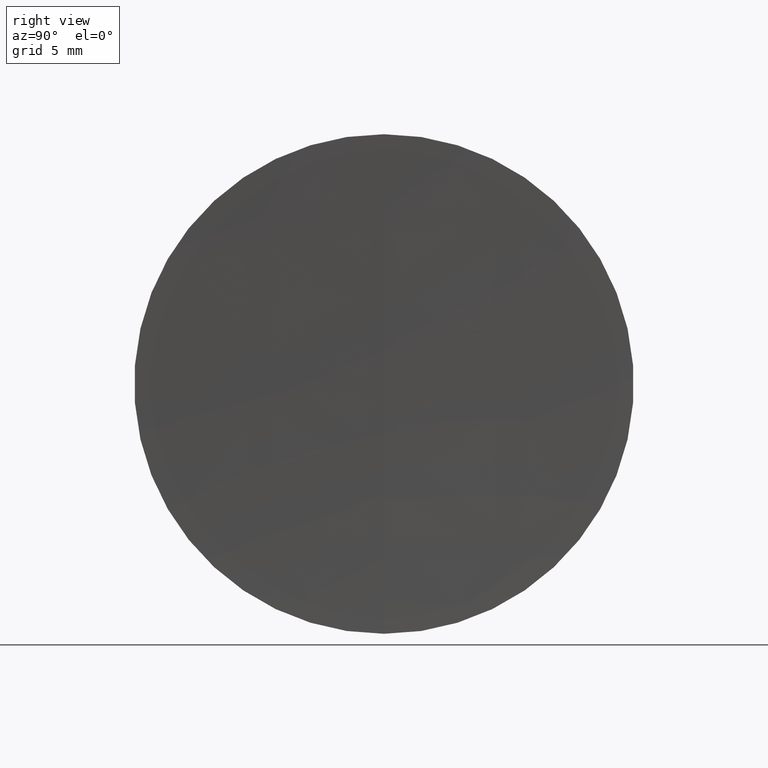
[diagram: clean part render]
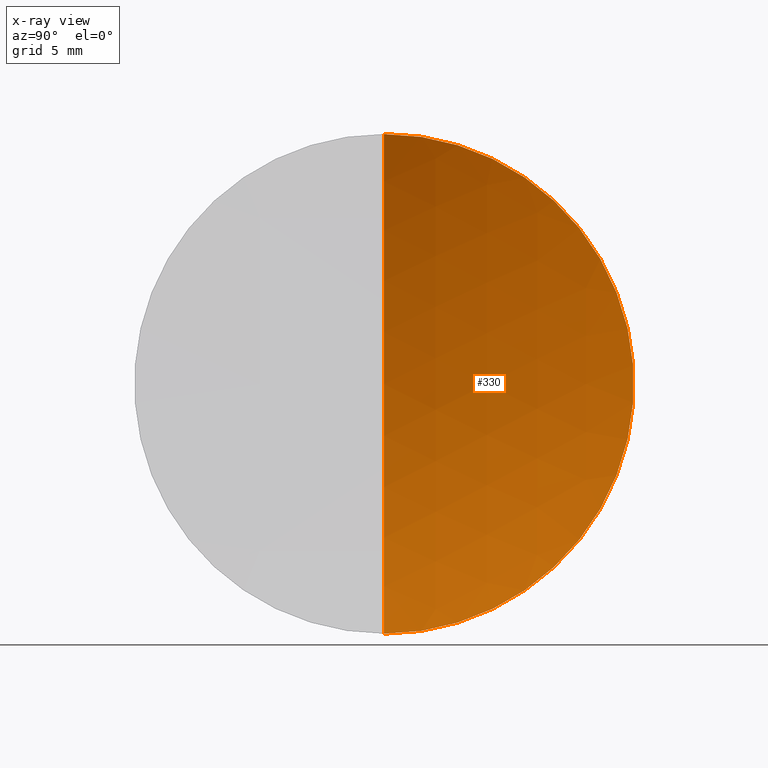
[diagram: x-ray — body ghosted, one internal face saturated and labeled with its STEP entity id]
A machine part, right view, then the same camera in x-ray: the body is ghosted and one INTERNAL B-rep face — a face not visible from any outside direction — is saturated and labeled: STEP entity #330.
In plain terms, the highlighted spherical surface has radius 27.86 mm.
Its self-contained STEP definition (entity closure, byte-faithful):
#33 = AXIS2_PLACEMENT_3D ( 'NONE', #85, #81, #319 ) ;
#35 = DIRECTION ( 'NONE',  ( 0.0000000000000000000, -1.224646799147353200E-016, 1.000000000000000000 ) ) ;
#38 = AXIS2_PLACEMENT_3D ( 'NONE', #346, #172, #314 ) ;
#44 = VERTEX_POINT ( 'NONE', #218 ) ;
#52 = VERTEX_POINT ( 'NONE', #105 ) ;
#67 = DIRECTION ( 'NONE',  ( -0.0000000000000000000, 1.000000000000000000, 1.224646799147353200E-016 ) ) ;
#74 = CIRCLE ( 'NONE', #33, 12.69999999999993000 ) ;
#76 = AXIS2_PLACEMENT_3D ( 'NONE', #333, #67, #35 ) ;
#81 = DIRECTION ( 'NONE',  ( -1.000000000000000000, -0.0000000000000000000, -0.0000000000000000000 ) ) ;
#85 = CARTESIAN_POINT ( 'NONE',  ( 161.5418237581144500, 0.0000000000000000000, 0.0000000000000000000 ) ) ;
#96 = EDGE_CURVE ( 'NONE', #52, #44, #74, .T. ) ;
#97 = ORIENTED_EDGE ( 'NONE', *, *, #335, .F. ) ;
#104 = EDGE_LOOP ( 'NONE', ( #214, #271, #97 ) ) ;
#105 = CARTESIAN_POINT ( 'NONE',  ( 161.5418237581144500, 0.0000000000000000000, 12.69999999999993500 ) ) ;
#116 = DIRECTION ( 'NONE',  ( 0.0000000000000000000, 0.0000000000000000000, -1.000000000000000000 ) ) ;
#133 = CIRCLE ( 'NONE', #76, 27.86000000000000300 ) ;
#138 = CARTESIAN_POINT ( 'NONE',  ( 186.3387913146524700, 0.0000000000000000000, -6.053013924752375300E-014 ) ) ;
#147 = EDGE_CURVE ( 'NONE', #44, #166, #133, .T. ) ;
#152 = SPHERICAL_SURFACE ( 'NONE', #38, 27.86000000000000300 ) ;
#166 = VERTEX_POINT ( 'NONE', #334 ) ;
#171 = CIRCLE ( 'NONE', #216, 27.86000000000000300 ) ;
#172 = DIRECTION ( 'NONE',  ( 0.0000000000000000000, 1.000000000000000000, 0.0000000000000000000 ) ) ;
#200 = DIRECTION ( 'NONE',  ( 0.0000000000000000000, -1.000000000000000000, 0.0000000000000000000 ) ) ;
#214 = ORIENTED_EDGE ( 'NONE', *, *, #96, .T. ) ;
#216 = AXIS2_PLACEMENT_3D ( 'NONE', #138, #200, #116 ) ;
#218 = CARTESIAN_POINT ( 'NONE',  ( 161.5418237581144500, 1.555301434917130500E-015, -12.69999999999999600 ) ) ;
#232 = FACE_OUTER_BOUND ( 'NONE', #104, .T. ) ;
#271 = ORIENTED_EDGE ( 'NONE', *, *, #147, .T. ) ;
#314 = DIRECTION ( 'NONE',  ( 0.0000000000000000000, 0.0000000000000000000, 1.000000000000000000 ) ) ;
#319 = DIRECTION ( 'NONE',  ( 0.0000000000000000000, 0.0000000000000000000, 1.000000000000000000 ) ) ;
#330 = ADVANCED_FACE ( 'NONE', ( #232 ), #152, .T. ) ;
#333 = CARTESIAN_POINT ( 'NONE',  ( 186.3387913146524700, 0.0000000000000000000, -6.053013924752375300E-014 ) ) ;
#334 = CARTESIAN_POINT ( 'NONE',  ( 158.4787913146524800, 0.0000000000000000000, -5.882420625631149400E-014 ) ) ;
#335 = EDGE_CURVE ( 'NONE', #52, #166, #171, .T. ) ;
#346 = CARTESIAN_POINT ( 'NONE',  ( 186.3387913146524700, 0.0000000000000000000, -6.053013924752375300E-014 ) ) ;